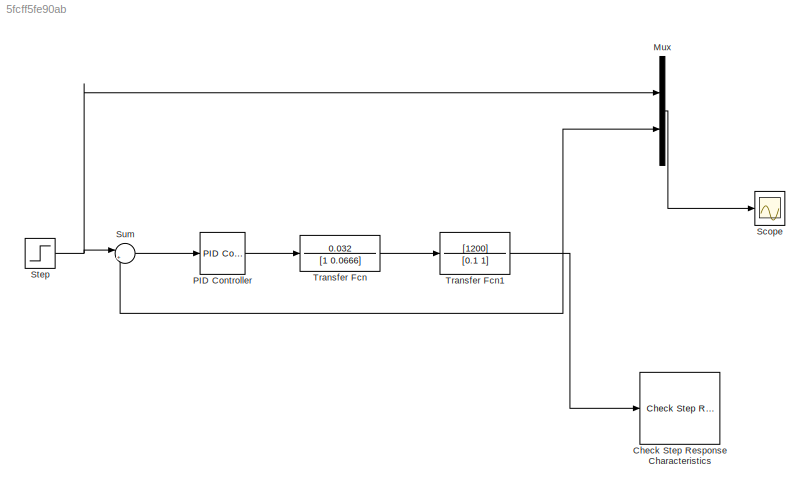
MODEL slx_5fcff5fe90ab
KIND model
CONFIG AbsTol = auto
CONFIG EnableMultiTasking = off
CONFIG FixedStep = auto
CONFIG MaxStep = auto
CONFIG MinStep = auto
CONFIG RelTol = 1e-3
CONFIG SampleTimeConstraint = Unconstrained
CONFIG Solver = VariableStepAuto
CONFIG SolverName = VariableStepAuto
CONFIG StartTime = 0.0
CONFIG StopTime = 10
WORKSPACE source: MAT-file member
WORKSPACE Kd = 1.09940225159
BLOCK [Reference] Check Step Response Characteristics  REF=checkpacklib/Check Step Response 
Characteristics
  InstantiateOnLoad = on
  Ports = [1]
  SourceBlock = checkpacklib/Check Step Response \nCharacteristics
  SourceType = Checks_StepResponse
BLOCK [Mux] Mux
  DisplayOption = bar
  Inputs = 2
  Ports = [2, 1]
BLOCK [Reference] PID Controller  REF=simulink/Continuous/PID Controller
  Ports = [1, 1]
  SourceBlock = simulink/Continuous/PID Controller
  SourceProductBaseCode = SL
  SourceProductName = Simulink
  SourceType = PID 1dof
BLOCK [Scope] Scope
  NumInputPorts = 1
  Ports = [1]
  ScopeSpecificationString = Simulink.scopes.TimeScopeBlockCfg('CurrentConfiguration', extmgr.ConfigurationSet(extmgr.Configuration('Core','General UI',true,'FigureColor',[1 1 1],'DisplayFullSourceName',true),extmgr.Configuration('Core','Source UI',true),extmgr.Configuration('Sources','WiredSimulink',true),extmgr.Configuration('Visuals','Time Domain',true,'SerializedDisplays',{struct('MinYLimReal','-0.2274','MaxYLimReal','2.0...<+1822ch>
BLOCK [Step] Step
  SampleTime = 0
  Time = 0.1
BLOCK [Sum] Sum
  IconShape = round
  InputSameDT = off
  Inputs = |+-
  OutDataTypeStr = Inherit: Inherit via internal rule
  Ports = [2, 1]
  SaturateOnIntegerOverflow = off
BLOCK [TransferFcn] Transfer Fcn
  Denominator = [1 0.0666]
  Numerator = 0.032
BLOCK [TransferFcn] Transfer Fcn1
  Denominator = [0.1 1]
  Numerator = [1200]
LINE Mux:1 -> Scope:1
LINE PID Controller:1 -> Transfer Fcn:1
NET Step:1 -> Mux:1, Sum:1
LINE Sum:1 -> PID Controller:1
NET Transfer Fcn1:1 -> Check Step Response Characteristics:1, Mux:2, Sum:2
LINE Transfer Fcn:1 -> Transfer Fcn1:1
note: NET lines group one-source signal fan-out (src -> all destinations, sorted); 1:1 wires keep LINE
